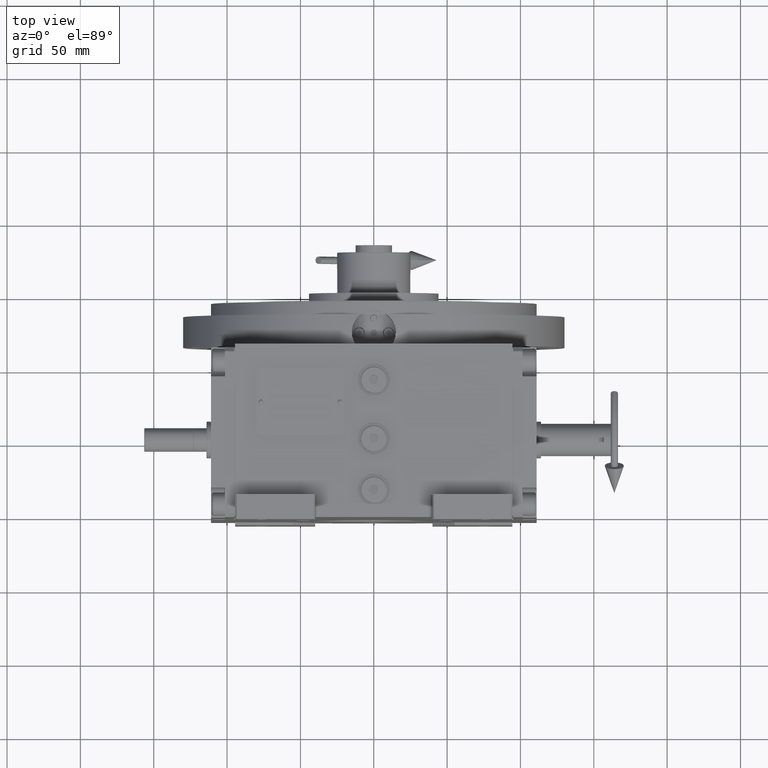
[diagram: clean part render]
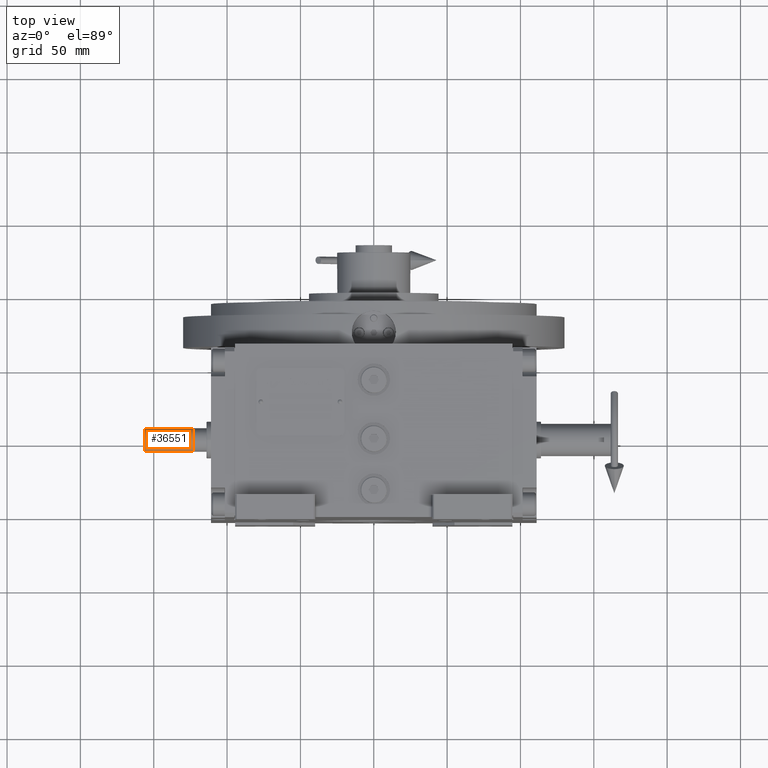
[diagram: same view with one face highlighted and labeled with its STEP entity id]
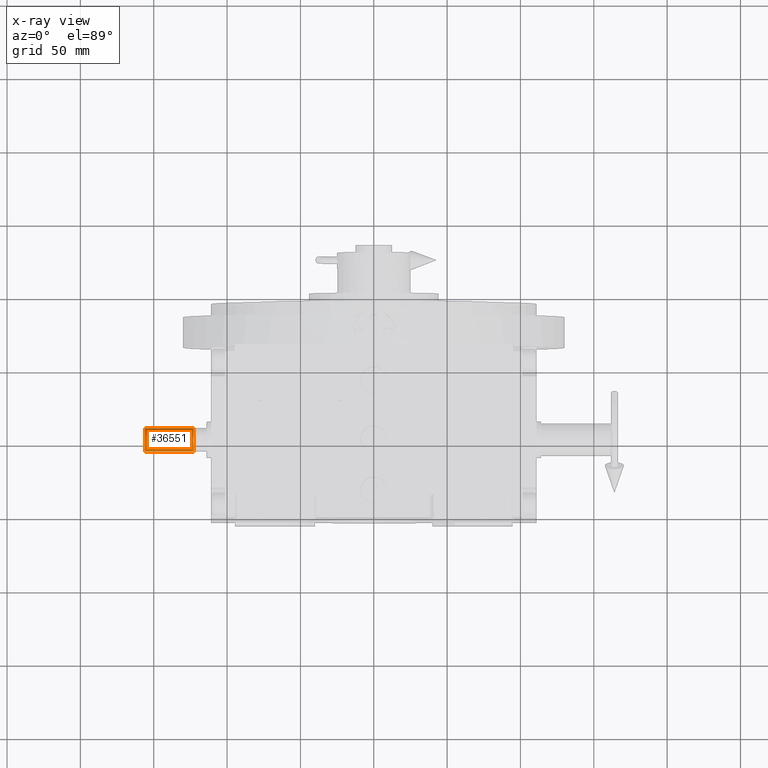
[diagram: x-ray of the same camera — body ghosted, the highlighted face saturated]
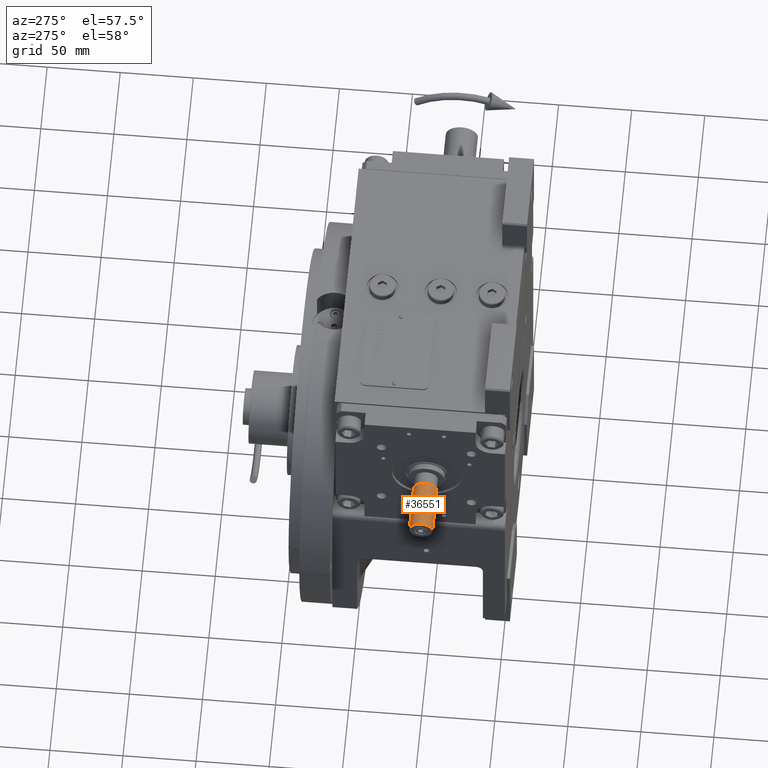
[diagram: same view with one face highlighted and labeled with its STEP entity id]
A machine part, top view. The second image highlights one B-rep face of the part: STEP entity #36551.
The next image is the same camera in x-ray: the body ghosted, the highlighted face saturated — about 0% of this face is hidden behind the body in this view.
A second angle (auxiliary view) of the same face is appended — the face is thin or edge-on in the first view.
In plain terms, the highlighted cylindrical surface (edge-blend (fillet) strip) has radius 8 mm, axis along (-1, 0, -0).
Its self-contained STEP definition (entity closure, byte-faithful):
#319 = EDGE_CURVE ( 'NONE', #7163, #4917, #15663, .T. ) ;
#3934 = CIRCLE ( 'NONE', #49668, 8.000000000000000000 ) ;
#4917 = VERTEX_POINT ( 'NONE', #8900 ) ;
#7116 = CARTESIAN_POINT ( 'NONE',  ( 1.065558752344486493E-08, -14.50000000007528556, 7.999999999924608751 ) ) ;
#7163 = VERTEX_POINT ( 'NONE', #35574 ) ;
#8900 = CARTESIAN_POINT ( 'NONE',  ( -8.326672684688674053E-14, -14.50000000000001243, -8.000000000000101252 ) ) ;
#10508 = DIRECTION ( 'NONE',  ( -1.774068363909806881E-14, -2.168404344971008868E-16, -1.000000000000000000 ) ) ;
#12465 = DIRECTION ( 'NONE',  ( -1.809663530139005476E-14, 0.000000000000000000, -1.000000000000000000 ) ) ;
#12817 = CARTESIAN_POINT ( 'NONE',  ( -8.326672684688674053E-14, -15.00000000000001421, -3.254051234036673697E-27 ) ) ;
#14850 = CARTESIAN_POINT ( 'NONE',  ( 1.276756478318930021E-12, -14.50000000000001243, 7.999999999999899636 ) ) ;
#15663 = LINE ( 'NONE', #25715, #24375 ) ;
#15874 = ORIENTED_EDGE ( 'NONE', *, *, #32021, .F. ) ;
#16231 = CARTESIAN_POINT ( 'NONE',  ( -8.326672684688674053E-14, -14.50000000000001243, -8.881784197027391229E-16 ) ) ;
#17854 = ORIENTED_EDGE ( 'NONE', *, *, #319, .F. ) ;
#19816 = EDGE_LOOP ( 'NONE', ( #17854, #15874, #34788, #48469 ) ) ;
#20463 = AXIS2_PLACEMENT_3D ( 'NONE', #12817, #34659, #12465 ) ;
#21653 = CARTESIAN_POINT ( 'NONE',  ( 0.000000000000000000, 18.50000000000054357, -8.881784196996329831E-16 ) ) ;
#21974 = DIRECTION ( 'NONE',  ( -2.220446049250370273E-16, -1.000000000000000000, 2.220446049249956368E-16 ) ) ;
#23937 = EDGE_CURVE ( 'NONE', #25933, #40455, #25619, .T. ) ;
#24375 = VECTOR ( 'NONE', #36067, 1000.000000000000000 ) ;
#24503 = CARTESIAN_POINT ( 'NONE',  ( 5.273559366969493567E-13, 18.50000000000054357, 7.999999999999899636 ) ) ;
#25619 = LINE ( 'NONE', #14850, #66926 ) ;
#25715 = CARTESIAN_POINT ( 'NONE',  ( -5.551115123125782702E-14, 18.50000000000054357, -8.000000000000101252 ) ) ;
#25933 = VERTEX_POINT ( 'NONE', #7116 ) ;
#29334 = EDGE_CURVE ( 'NONE', #4917, #25933, #3934, .T. ) ;
#32021 = EDGE_CURVE ( 'NONE', #40455, #7163, #67032, .T. ) ;
#32736 = DIRECTION ( 'NONE',  ( 1.797417062147531962E-14, 0.000000000000000000, 1.000000000000000000 ) ) ;
#34659 = DIRECTION ( 'NONE',  ( -5.028988270783950259E-30, -1.000000000000000000, -3.217488641336500757E-29 ) ) ;
#34788 = ORIENTED_EDGE ( 'NONE', *, *, #23937, .F. ) ;
#35574 = CARTESIAN_POINT ( 'NONE',  ( -8.326672684688674053E-14, 18.50000000000054357, -8.000000000000101252 ) ) ;
#36067 = DIRECTION ( 'NONE',  ( -5.028988270783950259E-30, -1.000000000000000000, -3.217488641336500757E-29 ) ) ;
#36551 = ADVANCED_FACE ( 'NONE', ( #50806 ), #45075, .T. ) ;
#40455 = VERTEX_POINT ( 'NONE', #24503 ) ;
#45075 = CYLINDRICAL_SURFACE ( 'NONE', #20463, 8.000000000000000000 ) ;
#48150 = DIRECTION ( 'NONE',  ( 5.028988270783950259E-30, 1.000000000000000000, 3.217488641336500757E-29 ) ) ;
#48469 = ORIENTED_EDGE ( 'NONE', *, *, #29334, .F. ) ;
#48732 = AXIS2_PLACEMENT_3D ( 'NONE', #21653, #54580, #32736 ) ;
#49668 = AXIS2_PLACEMENT_3D ( 'NONE', #16231, #21974, #10508 ) ;
#50806 = FACE_OUTER_BOUND ( 'NONE', #19816, .T. ) ;
#54580 = DIRECTION ( 'NONE',  ( 5.028988270783950259E-30, 1.000000000000000000, 3.217488641336500757E-29 ) ) ;
#66926 = VECTOR ( 'NONE', #48150, 1000.000000000000000 ) ;
#67032 = CIRCLE ( 'NONE', #48732, 8.000000000000000000 ) ;